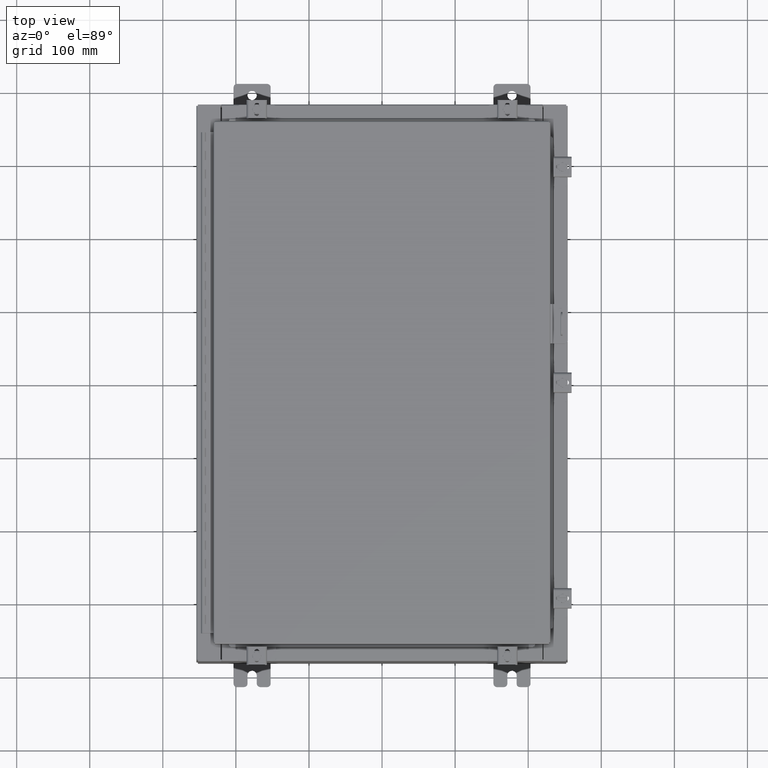
[diagram: clean part render]
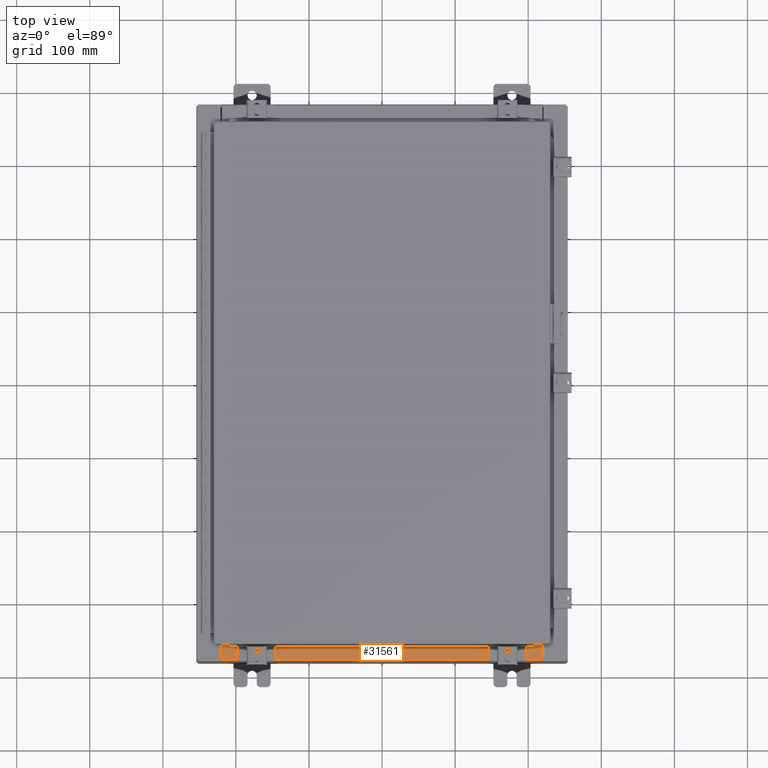
[diagram: same view with one face highlighted and labeled with its STEP entity id]
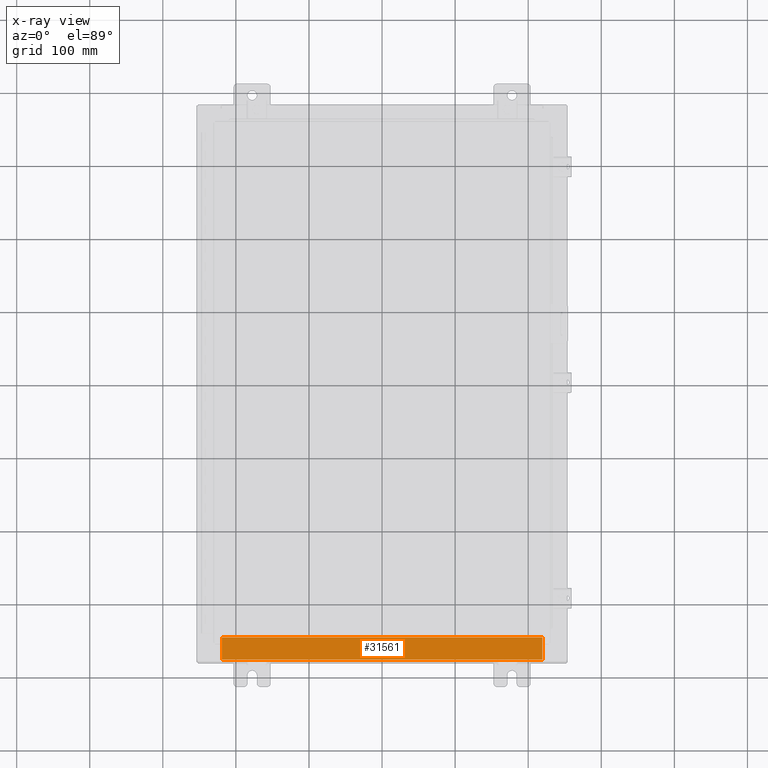
[diagram: x-ray of the same camera — body ghosted, the highlighted face saturated]
A machine part, top view. The second image highlights one B-rep face of the part: STEP entity #31561.
The next image is the same camera in x-ray: the body ghosted, the highlighted face saturated — about 0% of this face is hidden behind the body in this view.
In plain terms, the highlighted planar face has unit normal (-0, -0, 1).
Its self-contained STEP definition (entity closure, byte-faithful):
#1400 = ORIENTED_EDGE ( 'NONE', *, *, #30369, .F. ) ;
#1593 = VERTEX_POINT ( 'NONE', #33695 ) ;
#2040 = EDGE_LOOP ( 'NONE', ( #1400, #12831, #24790, #10896 ) ) ;
#2456 = DIRECTION ( 'NONE',  ( -1.000000000000000000, 3.162886113166609200E-017, -1.128005754888089100E-031 ) ) ;
#2765 = VECTOR ( 'NONE', #15319, 39.37007874015748100 ) ;
#3667 = LINE ( 'NONE', #18214, #2765 ) ;
#5396 = CARTESIAN_POINT ( 'NONE',  ( -8.637200000000000000, -1.287299999999999200, 4.000000000000004400 ) ) ;
#6137 = LINE ( 'NONE', #31677, #20607 ) ;
#8635 = CARTESIAN_POINT ( 'NONE',  ( 8.637200000000000000, -1.287299999999999900, 4.000000000000003600 ) ) ;
#8999 = EDGE_CURVE ( 'NONE', #26416, #1593, #12667, .T. ) ;
#10896 = ORIENTED_EDGE ( 'NONE', *, *, #8999, .T. ) ;
#12667 = LINE ( 'NONE', #19733, #28099 ) ;
#12691 = DIRECTION ( 'NONE',  ( 0.0000000000000000000, 3.566381192773190000E-015, 1.000000000000000000 ) ) ;
#12831 = ORIENTED_EDGE ( 'NONE', *, *, #20649, .F. ) ;
#14306 = DIRECTION ( 'NONE',  ( -0.0000000000000000000, -1.000000000000000000, 3.566381192773190000E-015 ) ) ;
#14320 = DIRECTION ( 'NONE',  ( -1.000000000000000000, 0.0000000000000000000, 0.0000000000000000000 ) ) ;
#15319 = DIRECTION ( 'NONE',  ( -0.0000000000000000000, 1.000000000000000000, -3.566381192773190000E-015 ) ) ;
#18214 = CARTESIAN_POINT ( 'NONE',  ( -8.637200000000000000, -0.07469999999999973900, 4.000000000000000000 ) ) ;
#19145 = CARTESIAN_POINT ( 'NONE',  ( 8.637200000000000000, -1.287299999999999900, 4.000000000000004400 ) ) ;
#19733 = CARTESIAN_POINT ( 'NONE',  ( -2.773851121247567100E-018, -0.08770000000000000000, 4.000000000000000900 ) ) ;
#20539 = VERTEX_POINT ( 'NONE', #5396 ) ;
#20607 = VECTOR ( 'NONE', #14306, 39.37007874015748100 ) ;
#20649 = EDGE_CURVE ( 'NONE', #36374, #20539, #34930, .T. ) ;
#24790 = ORIENTED_EDGE ( 'NONE', *, *, #25037, .F. ) ;
#25037 = EDGE_CURVE ( 'NONE', #26416, #36374, #6137, .T. ) ;
#25294 = FACE_OUTER_BOUND ( 'NONE', #2040, .T. ) ;
#26416 = VERTEX_POINT ( 'NONE', #26662 ) ;
#26662 = CARTESIAN_POINT ( 'NONE',  ( 8.637200000000000000, -0.08769999999999965300, 4.000000000000000000 ) ) ;
#27287 = CARTESIAN_POINT ( 'NONE',  ( 0.0000000000000000000, 1.425992975200418500E-014, 4.000000000000000000 ) ) ;
#28099 = VECTOR ( 'NONE', #2456, 39.37007874015748100 ) ;
#28508 = AXIS2_PLACEMENT_3D ( 'NONE', #27287, #12691, #33106 ) ;
#30186 = PLANE ( 'NONE',  #28508 ) ;
#30369 = EDGE_CURVE ( 'NONE', #20539, #1593, #3667, .T. ) ;
#31561 = ADVANCED_FACE ( 'NONE', ( #25294 ), #30186, .T. ) ;
#31677 = CARTESIAN_POINT ( 'NONE',  ( 8.637200000000000000, -1.300299999999999800, 4.000000000000004400 ) ) ;
#33106 = DIRECTION ( 'NONE',  ( 0.0000000000000000000, -1.000000000000000000, 3.566381192773190000E-015 ) ) ;
#33695 = CARTESIAN_POINT ( 'NONE',  ( -8.637200000000000000, -0.08770000000000000000, 4.000000000000000000 ) ) ;
#34930 = LINE ( 'NONE', #8635, #35862 ) ;
#35862 = VECTOR ( 'NONE', #14320, 39.37007874015748100 ) ;
#36374 = VERTEX_POINT ( 'NONE', #19145 ) ;